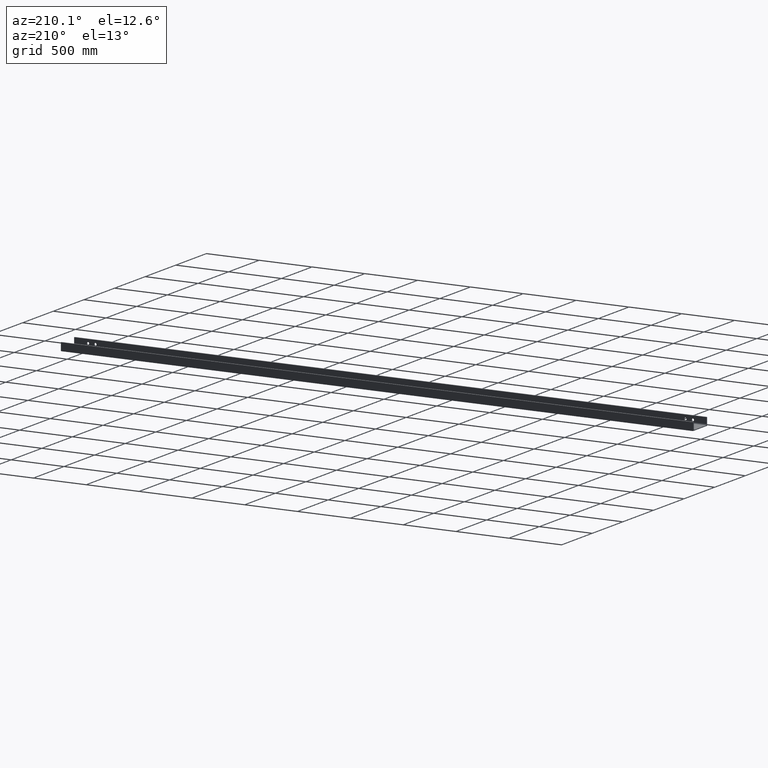
[diagram: clean part render]
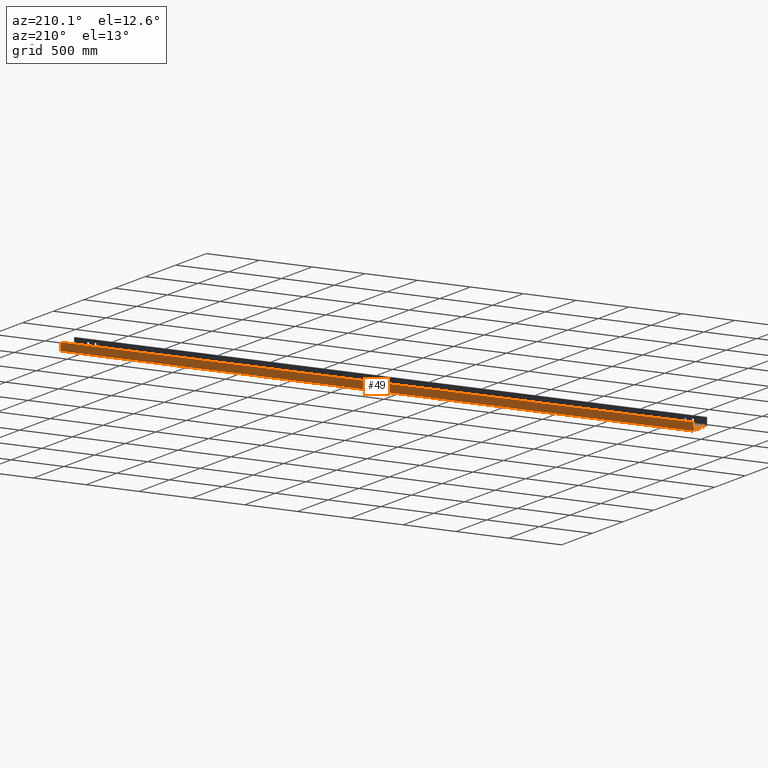
[diagram: same view with one face highlighted and labeled with its STEP entity id]
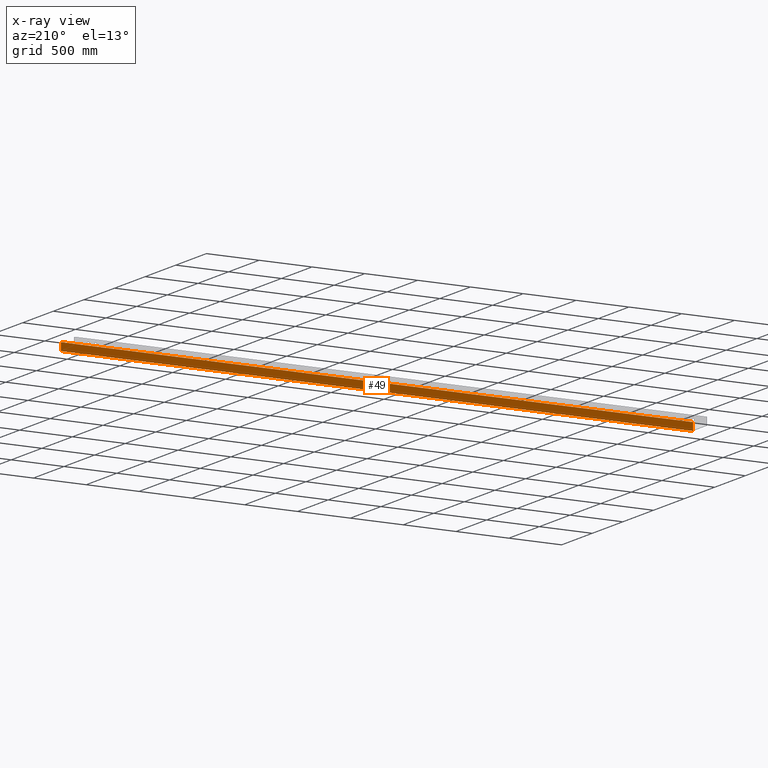
[diagram: x-ray of the same camera — body ghosted, the highlighted face saturated]
A machine part, auxiliary view. The second image highlights one B-rep face of the part: STEP entity #49.
The next image is the same camera in x-ray: the body ghosted, the highlighted face saturated — about 0% of this face is hidden behind the body in this view.
In plain terms, the highlighted planar face has unit normal (-0, 1, -0).
Its self-contained STEP definition (entity closure, byte-faithful):
#12 = EDGE_CURVE ( 'NONE', #429, #385, #595, .T. ) ;
#20 = VECTOR ( 'NONE', #276, 1000.000000000000000 ) ;
#45 = LINE ( 'NONE', #368, #20 ) ;
#49 = ADVANCED_FACE ( 'NONE', ( #443 ), #338, .T. ) ;
#58 = DIRECTION ( 'NONE',  ( 0.000000000000000000, 2.960594732333750906E-15, 1.000000000000000000 ) ) ;
#86 = ORIENTED_EDGE ( 'NONE', *, *, #409, .F. ) ;
#124 = AXIS2_PLACEMENT_3D ( 'NONE', #341, #730, #58 ) ;
#194 = CARTESIAN_POINT ( 'NONE',  ( -2992.500000000000000, 114.9999999999992468, -13.70000000000041318 ) ) ;
#197 = CARTESIAN_POINT ( 'NONE',  ( -2992.500000000000000, 114.9999999999992468, -13.70000000000041318 ) ) ;
#200 = EDGE_CURVE ( 'NONE', #429, #603, #649, .T. ) ;
#259 = CARTESIAN_POINT ( 'NONE',  ( 2992.500000000000000, 115.0000000000012932, 61.29999999999958504 ) ) ;
#273 = DIRECTION ( 'NONE',  ( 1.000000000000000000, 3.061616997868382648E-16, -0.000000000000000000 ) ) ;
#276 = DIRECTION ( 'NONE',  ( 1.000000000000000000, 3.061616997868382648E-16, -0.000000000000000000 ) ) ;
#294 = VECTOR ( 'NONE', #296, 1000.000000000000000 ) ;
#296 = DIRECTION ( 'NONE',  ( 0.000000000000000000, 2.960594732333750906E-15, 1.000000000000000000 ) ) ;
#301 = VECTOR ( 'NONE', #273, 1000.000000000000000 ) ;
#305 = DIRECTION ( 'NONE',  ( 0.000000000000000000, 2.960594732333750906E-15, 1.000000000000000000 ) ) ;
#337 = EDGE_CURVE ( 'NONE', #603, #558, #45, .T. ) ;
#338 = PLANE ( 'NONE',  #124 ) ;
#341 = CARTESIAN_POINT ( 'NONE',  ( -2992.500000000000000, 114.9999999999992468, -13.70000000000041318 ) ) ;
#349 = CARTESIAN_POINT ( 'NONE',  ( 2992.500000000000000, 115.0000000000010800, -13.70000000000041318 ) ) ;
#363 = EDGE_LOOP ( 'NONE', ( #86, #703, #375, #470 ) ) ;
#368 = CARTESIAN_POINT ( 'NONE',  ( -2992.500000000000000, 114.9999999999994600, 61.29999999999958504 ) ) ;
#375 = ORIENTED_EDGE ( 'NONE', *, *, #200, .T. ) ;
#385 = VERTEX_POINT ( 'NONE', #349 ) ;
#405 = LINE ( 'NONE', #525, #294 ) ;
#409 = EDGE_CURVE ( 'NONE', #385, #558, #405, .T. ) ;
#429 = VERTEX_POINT ( 'NONE', #679 ) ;
#443 = FACE_OUTER_BOUND ( 'NONE', #363, .T. ) ;
#470 = ORIENTED_EDGE ( 'NONE', *, *, #337, .T. ) ;
#525 = CARTESIAN_POINT ( 'NONE',  ( 2992.500000000000000, 115.0000000000010800, -13.70000000000041318 ) ) ;
#558 = VERTEX_POINT ( 'NONE', #259 ) ;
#595 = LINE ( 'NONE', #197, #301 ) ;
#596 = CARTESIAN_POINT ( 'NONE',  ( -2992.500000000000000, 114.9999999999994600, 61.29999999999958504 ) ) ;
#603 = VERTEX_POINT ( 'NONE', #596 ) ;
#649 = LINE ( 'NONE', #194, #726 ) ;
#679 = CARTESIAN_POINT ( 'NONE',  ( -2992.500000000000000, 114.9999999999992468, -13.70000000000041318 ) ) ;
#703 = ORIENTED_EDGE ( 'NONE', *, *, #12, .F. ) ;
#726 = VECTOR ( 'NONE', #305, 1000.000000000000000 ) ;
#730 = DIRECTION ( 'NONE',  ( -3.061616997868382648E-16, 1.000000000000000000, -2.960594732333750906E-15 ) ) ;